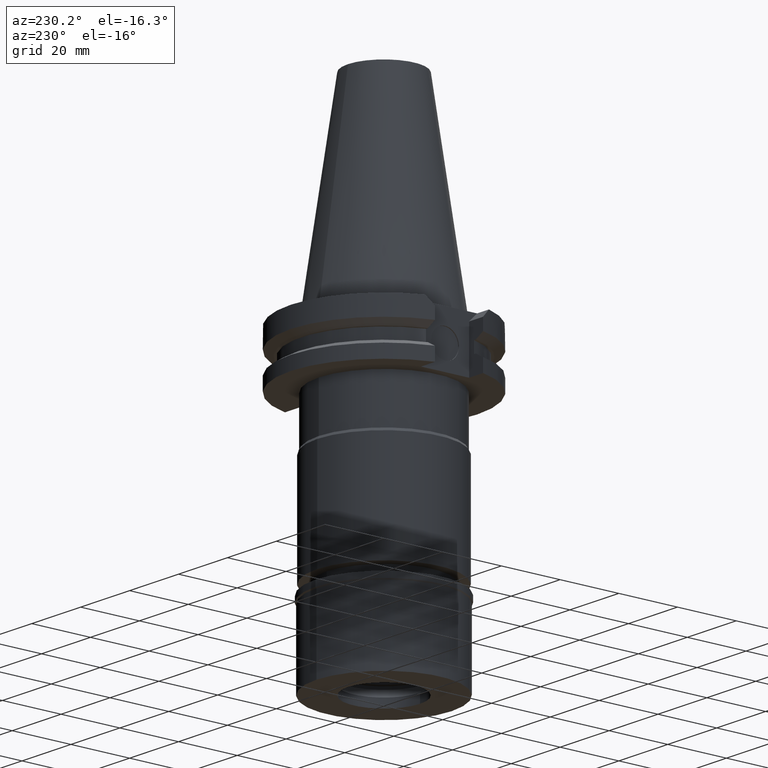
[diagram: clean part render]
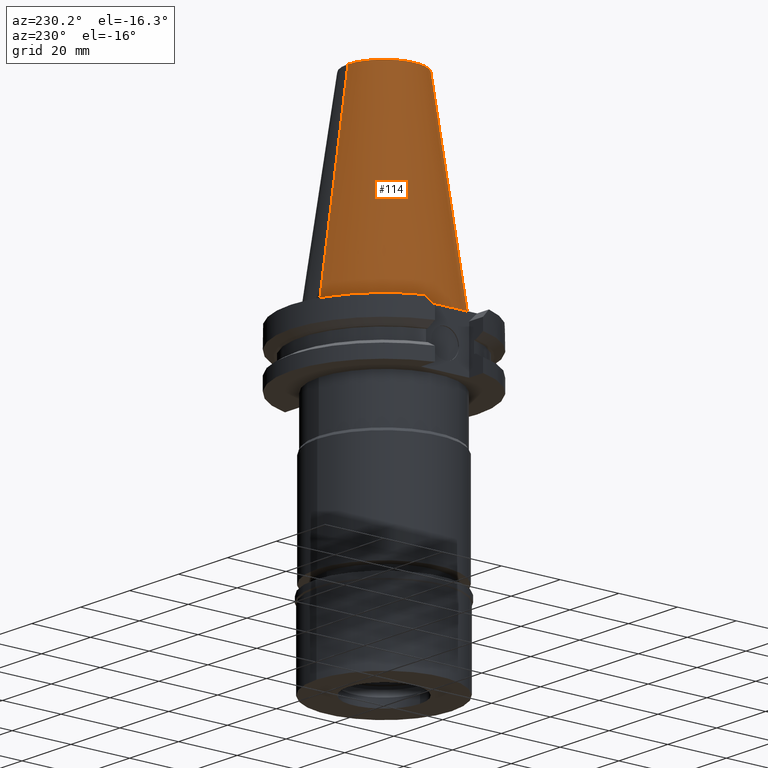
[diagram: same view with one face highlighted and labeled with its STEP entity id]
A machine part, auxiliary view. The second image highlights one B-rep face of the part: STEP entity #114.
In plain terms, the highlighted conical surface has half-angle 8.297 deg.
Its self-contained STEP definition (entity closure, byte-faithful):
#60 = FACE_OUTER_BOUND ( 'NONE', #1602, .T. ) ;
#91 = CARTESIAN_POINT ( 'NONE',  ( 0.0000000000000000000, 22.22500000000000142, -2.060573933703999733E-13 ) ) ;
#98 = VECTOR ( 'NONE', #804, 1000.000000000000114 ) ;
#114 = ADVANCED_FACE ( 'NONE', ( #60 ), #1556, .T. ) ;
#301 = DIRECTION ( 'NONE',  ( 0.0000000000000000000, 0.1443069799456937474, -0.9895329683941577192 ) ) ;
#384 = CARTESIAN_POINT ( 'NONE',  ( 0.0000000000000000000, 1.642557519355999895E-14, -3.126388037344000570E-13 ) ) ;
#398 = EDGE_CURVE ( 'NONE', #2024, #1968, #1115, .T. ) ;
#504 = AXIS2_PLACEMENT_3D ( 'NONE', #2012, #1765, #1322 ) ;
#530 = LINE ( 'NONE', #1540, #98 ) ;
#804 = DIRECTION ( 'NONE',  ( 0.0000000000000000000, -0.1443069799456937474, -0.9895329683941577192 ) ) ;
#965 = CARTESIAN_POINT ( 'NONE',  ( 0.0000000000000000000, -22.22500000000000142, -2.060573933703999733E-13 ) ) ;
#1006 = DIRECTION ( 'NONE',  ( 0.0000000000000000000, 0.0000000000000000000, -1.000000000000000000 ) ) ;
#1094 = ORIENTED_EDGE ( 'NONE', *, *, #398, .T. ) ;
#1115 = CIRCLE ( 'NONE', #1274, 12.27186888070000137 ) ;
#1124 = ORIENTED_EDGE ( 'NONE', *, *, #2228, .F. ) ;
#1274 = AXIS2_PLACEMENT_3D ( 'NONE', #2431, #1006, #2699 ) ;
#1317 = CARTESIAN_POINT ( 'NONE',  ( 0.0000000000000000000, 12.27186888070000137, 68.25000000000000000 ) ) ;
#1322 = DIRECTION ( 'NONE',  ( 0.0000000000000000000, -1.000000000000000000, 0.0000000000000000000 ) ) ;
#1540 = CARTESIAN_POINT ( 'NONE',  ( 0.0000000000000000000, -12.27186888070000137, 68.25000000000000000 ) ) ;
#1556 = CONICAL_SURFACE ( 'NONE', #504, 17.24843444035000317, 0.1448125860318199565 ) ;
#1573 = LINE ( 'NONE', #1317, #2906 ) ;
#1602 = EDGE_LOOP ( 'NONE', ( #2232, #1124, #1094, #2504 ) ) ;
#1765 = DIRECTION ( 'NONE',  ( 0.0000000000000000000, 0.0000000000000000000, -1.000000000000000000 ) ) ;
#1791 = VERTEX_POINT ( 'NONE', #91 ) ;
#1968 = VERTEX_POINT ( 'NONE', #2650 ) ;
#2012 = CARTESIAN_POINT ( 'NONE',  ( 0.0000000000000000000, 1.642557519355999895E-14, 34.12500000000000000 ) ) ;
#2024 = VERTEX_POINT ( 'NONE', #2715 ) ;
#2124 = EDGE_CURVE ( 'NONE', #1968, #1791, #1573, .T. ) ;
#2143 = DIRECTION ( 'NONE',  ( 0.0000000000000000000, -1.000000000000000000, 0.0000000000000000000 ) ) ;
#2228 = EDGE_CURVE ( 'NONE', #2024, #2646, #530, .T. ) ;
#2232 = ORIENTED_EDGE ( 'NONE', *, *, #2884, .F. ) ;
#2431 = CARTESIAN_POINT ( 'NONE',  ( 0.0000000000000000000, 1.642557519355999895E-14, 68.25000000000000000 ) ) ;
#2504 = ORIENTED_EDGE ( 'NONE', *, *, #2124, .T. ) ;
#2563 = CIRCLE ( 'NONE', #2919, 22.22500000000000142 ) ;
#2643 = DIRECTION ( 'NONE',  ( 0.0000000000000000000, 0.0000000000000000000, -1.000000000000000000 ) ) ;
#2646 = VERTEX_POINT ( 'NONE', #965 ) ;
#2650 = CARTESIAN_POINT ( 'NONE',  ( 0.0000000000000000000, 12.27186888070000137, 68.25000000000000000 ) ) ;
#2699 = DIRECTION ( 'NONE',  ( 0.0000000000000000000, -1.000000000000000000, 0.0000000000000000000 ) ) ;
#2715 = CARTESIAN_POINT ( 'NONE',  ( 0.0000000000000000000, -12.27186888070000137, 68.25000000000000000 ) ) ;
#2884 = EDGE_CURVE ( 'NONE', #2646, #1791, #2563, .T. ) ;
#2906 = VECTOR ( 'NONE', #301, 1000.000000000000114 ) ;
#2919 = AXIS2_PLACEMENT_3D ( 'NONE', #384, #2643, #2143 ) ;